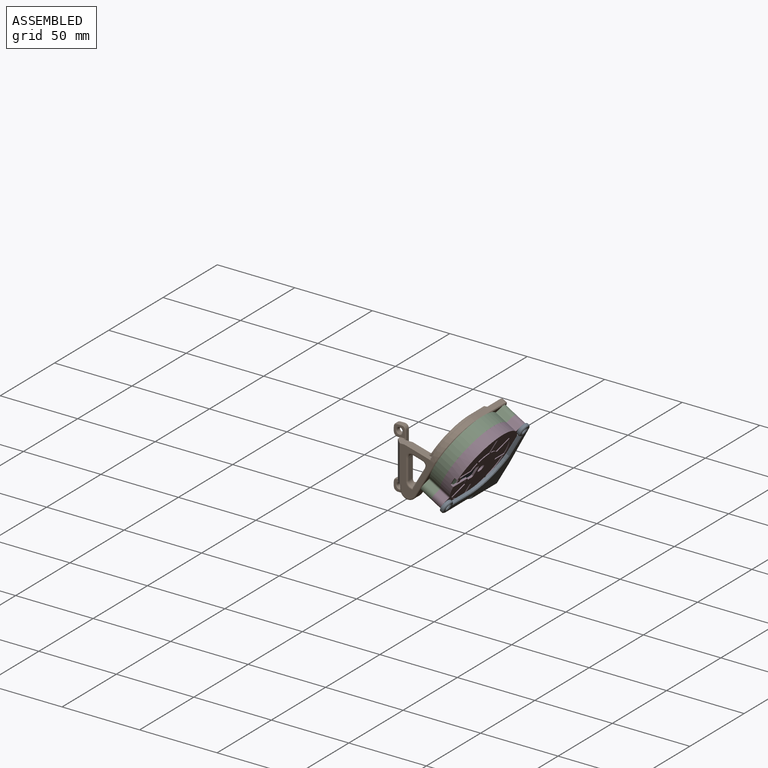
[diagram: assembled view]
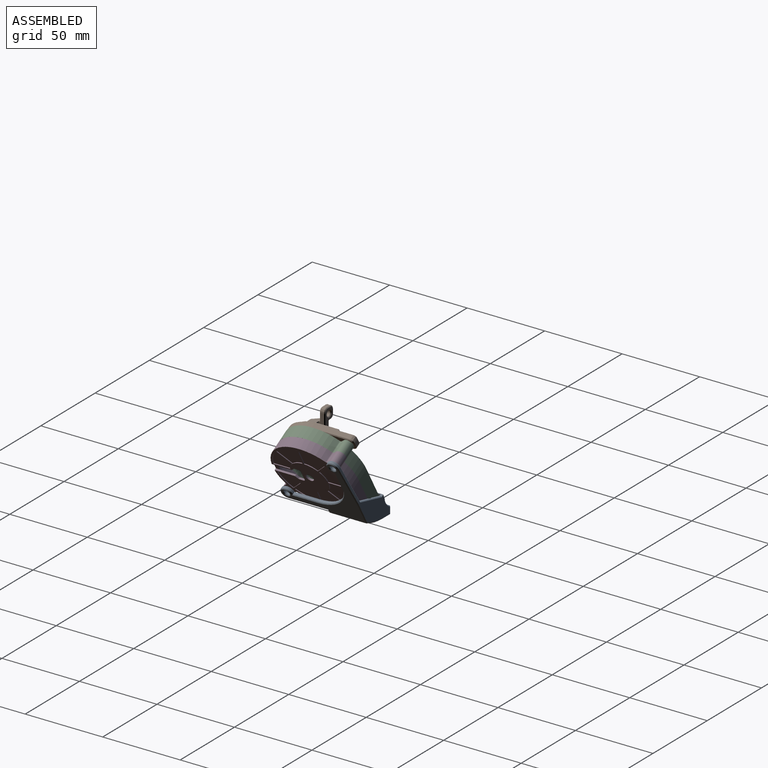
[diagram: assembled view, second angle]
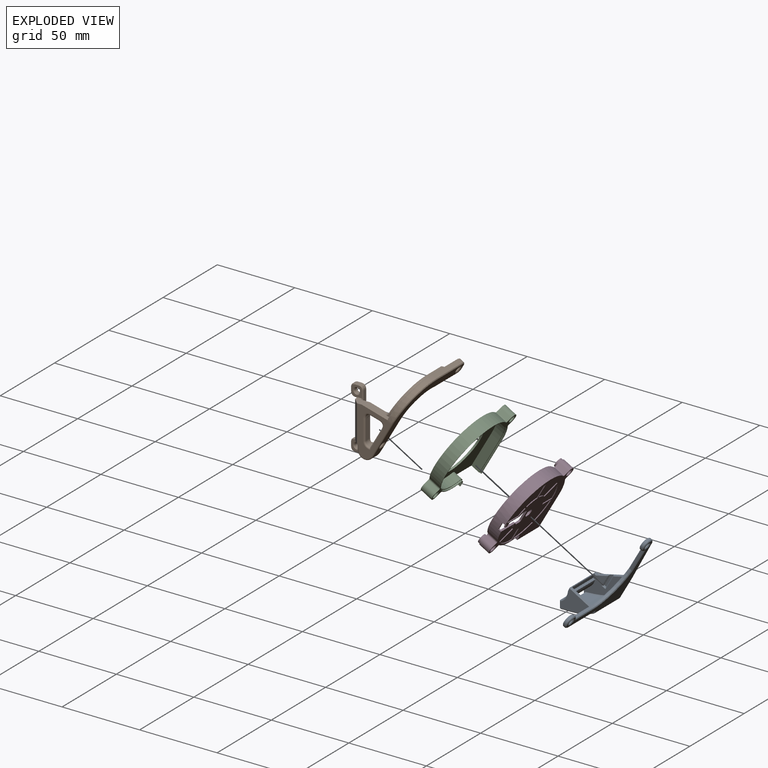
[diagram: exploded view]
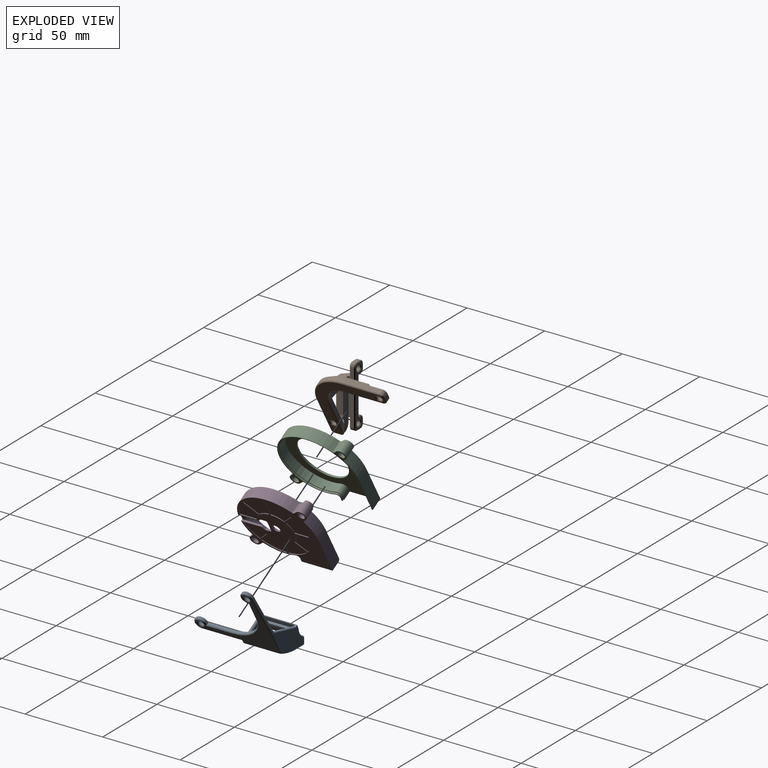
[diagram: exploded view, second angle]
ASSEMBLY  parts=4 mates=3
PART A: 91 faces, bbox 53.7x62x20.1 mm
  f0: plane 1.86x1.5mm, normal (0,1,0), area 1.9mm2, adj f1,f26,f46,f53,f69
  f1: plane 15x13.85mm, normal (0,0.73,-0.68), area 19.3mm2, adj f0,f13,f28,f29,f30,f32,f34,f42
  f2: plane 23.5x3.9mm, normal (0,-0.5,-0.87), area 22.7mm2, adj f14,f25,f27,f57,f64,f65,f78,f80
  f3: plane 16.12x1mm, normal (0,1,0), area 16.1mm2, adj f13,f48,f53,f90
  f4: plane 25.15x1.5mm, normal (0,-1,0), area 37.7mm2, adj f9,f18,f54,f73
  f5: cylinder r=4mm len=8.01mm, axis (0,0,-1), area 28.1mm2, adj f6,f38,f41,f72
  f6: plane 16x1.5mm, normal (-1,0,0), area 24mm2, adj f5,f7,f39,f74
  f7: cylinder r=23.69mm len=23mm, axis (0,0,-1), area 47.2mm2, adj f6,f8,f40,f76
  f8: plane 16x1.5mm, normal (0,1,0), area 24mm2, adj f7,f9,f43,f77
  f9: cylinder r=4.05mm len=8.09mm, axis (0,0,-1), area 27.7mm2, adj f4,f8,f49,f75
  f10: cylinder r=2mm len=4mm, axis (0,0,-1), area 18.8mm2, adj f81,f82
  f11: cylinder r=2mm len=4mm, axis (0,0,-1), area 18.8mm2, adj f83,f84
  f12: plane 52.7x47.99mm, normal (0,0,1), area 548mm2, adj f39,f40,f41,f43,f44,f49,f50,f54
  f13: plane 52.7x49.16mm, normal (0,0,-1), area 546.4mm2, adj f1,f3,f18,f21,f25,f27,f48,f70
  f14: cylinder r=7.59mm len=23.5mm, axis (1,0,0), area 208.4mm2, adj f2,f15,f52,f62
  f15: plane 23.5x2.46mm, normal (0,-0.08,-1), area 58mm2, adj f14,f45,f53,f58
  f16: cylinder r=38.89mm len=23.5mm, axis (1,0,0), area 358.4mm2, adj f17,f51,f60,f66
  f17: plane 23.5x5.63mm, normal (0,-0.87,0.5), area 152.7mm2, adj f16,f56,f64,f68
  f18: plane 18.95x15.44mm, normal (-1,0,0), area 163.7mm2, adj f4,f13,f58,f59,f62,f65,f66,f68
  f19: plane 20.5x1.5mm, normal (0,1,0), area 30.7mm2, adj f20,f24,f25,f27
  f20: plane 20.66x2.58mm, normal (0,0.16,0.99), area 53.7mm2, adj f19,f25,f27,f46,f47,f48
  f21: plane 20.5x0.77mm, normal (0,1,0), area 15.8mm2, adj f13,f25,f27,f79
  f22: cylinder r=43.69mm len=19.5mm, axis (1,0,0), area 225.1mm2, adj f23,f79,f86,f88
  f23: plane 19.5x5.43mm, normal (0,0.83,-0.56), area 127.8mm2, adj f22,f80,f87,f89
  f24: cylinder r=8.56mm len=20.5mm, axis (1,0,0), area 198mm2, adj f19,f25,f27,f78
  f25: plane 17.36x14.66mm, normal (1,0,0), area 117.1mm2, adj f2,f13,f19,f20,f21,f24,f48,f78
  f26: plane 29.1x18.95mm, normal (1,0,0), area 293.4mm2, adj f0,f38,f45,f50,f51,f52,f53,f56
  f27: plane 28.33x17.36mm, normal (-1,0,0), area 193.2mm2, adj f2,f13,f19,f20,f21,f24,f35,f36
  f28: plane 9.39x1.2mm, normal (-1,0,0), area 10.6mm2, adj f1,f32,f33,f34
  f29: plane 8.31x0.2mm, normal (0,0,1), area 1.7mm2, adj f1,f31,f34,f35,f42
  f30: plane 10.16x0.2mm, normal (0,0,-1), area 2mm2, adj f1,f31,f32,f36,f85
  f31: plane 2x0.2mm, normal (0,1,0), area 0.4mm2, adj f29,f30,f33,f37
  f32: plane 10.16x0.4mm, normal (-0.71,0,-0.71), area 5.5mm2, adj f1,f28,f30,f33
  f33: plane 2x0.4mm, normal (-0.71,0.71,0), area 0.9mm2, adj f28,f31,f32,f34
  f34: plane 8.68x0.4mm, normal (-0.71,0,0.71), area 4.7mm2, adj f1,f28,f29,f33
  f35: plane 8.58x0.4mm, normal (-0.71,0,0.71), area 4.5mm2, adj f27,f29,f37,f42
  f36: plane 10.42x0.4mm, normal (-0.71,0,-0.71), area 5.7mm2, adj f27,f30,f37,f85
  f37: plane 2.8x0.4mm, normal (-0.71,0.71,0), area 1.4mm2, adj f27,f31,f35,f36
  f38: plane 28.5x2.5mm, normal (1,0.09,0), area 42.9mm2, adj f5,f26,f44,f71
  f39: plane 16.58x0.5mm, normal (-0.71,0,0.71), area 11.5mm2, adj f6,f12,f40,f41
  f40: cone r=23.69mm half-angle=45deg, axis (0,0,1), area 22.5mm2, adj f7,f12,f39,f43
  f41: cone r=3.5mm half-angle=45deg, axis (0,0,-1), area 12.6mm2, adj f5,f12,f39,f44
  f42: plane 6.31x6.3mm, normal (-0.71,0.52,-0.48), area 5.8mm2, adj f1,f27,f29,f35,f46
  f43: plane 16.46x0.5mm, normal (0,0.71,0.71), area 11.5mm2, adj f8,f12,f40,f49
  f44: plane 28.52x3mm, normal (0.7,0.06,0.71), area 20.2mm2, adj f12,f38,f41,f50
  f45: plane 2.96x0.7mm, normal (0.71,-0.06,-0.7), area 1.9mm2, adj f15,f26,f52,f53
  f46: plane 1.45x0.5mm, normal (-0.71,0.71,0), area 0.8mm2, adj f0,f20,f27,f42,f47,f53
  f47: plane 21.22x0.33mm, normal (0,0.76,0.65), area 8.9mm2, adj f20,f46,f48,f53
  f48: plane 16.26x0.5mm, normal (0.71,0.71,0), area 11.4mm2, adj f3,f13,f20,f25,f47,f53
  f49: cone r=3.55mm half-angle=45deg, axis (0,0,-1), area 12.4mm2, adj f9,f12,f43,f54
  f50: plane 15.99x0.5mm, normal (0.71,0,0.71), area 11.3mm2, adj f12,f26,f44,f55
  f51: cone r=38.39mm half-angle=45deg, axis (-1,0,0), area 10.7mm2, adj f16,f26,f55,f56
  f52: cone r=7.59mm half-angle=45deg, axis (1,0,0), area 6.3mm2, adj f14,f26,f45,f57
  f53: plane 24.27x0.54mm, normal (0,0.68,-0.74), area 13.5mm2, adj f0,f3,f15,f26,f45,f46,f47,f48
  f54: plane 25.65x0.5mm, normal (0,-0.71,0.71), area 18mm2, adj f4,f12,f49,f59
  f55: plane 0.5x0.5mm, normal (0.69,-0.23,0.69), area 0.1mm2, adj f50,f51,f60
  f56: plane 5.88x3.68mm, normal (0.71,-0.61,0.35), area 4.6mm2, adj f17,f26,f51,f61
  f57: plane 3.91x2.69mm, normal (0.71,-0.35,-0.61), area 3.1mm2, adj f2,f26,f52,f61
  f58: plane 2.73x0.7mm, normal (-0.71,-0.06,-0.7), area 1.8mm2, adj f15,f18,f53,f62,f90
  f59: plane 2.33x0.5mm, normal (-0.71,0,0.71), area 1.5mm2, adj f12,f18,f54,f63
  f60: plane 23.5x0.3mm, normal (0,-0.32,0.95), area 7.6mm2, adj f12,f16,f55,f63
  f61: plane 0.68x0.5mm, normal (0.58,-0.79,-0.21), area 0.2mm2, adj f56,f57,f64
  f62: cone r=8.09mm half-angle=45deg, axis (-1,0,0), area 6.3mm2, adj f14,f18,f58,f65
  f63: plane 0.5x0.5mm, normal (-0.69,-0.23,0.69), area 0.1mm2, adj f59,f60,f66
  f64: plane 23.5x0.68mm, normal (0,-0.97,-0.26), area 16.6mm2, adj f2,f17,f61,f67
  f65: plane 3.91x2.69mm, normal (-0.71,-0.35,-0.61), area 3.1mm2, adj f2,f18,f62,f67
  f66: cone r=38.89mm half-angle=45deg, axis (1,0,0), area 10.7mm2, adj f16,f18,f63,f68
  f67: plane 0.68x0.5mm, normal (-0.58,-0.79,-0.21), area 0.2mm2, adj f64,f65,f68
  f68: plane 5.88x3.68mm, normal (-0.71,-0.61,0.35), area 4.6mm2, adj f17,f18,f66,f67
  f69: plane 15.5x13.85mm, normal (0.71,0.52,-0.48), area 14.3mm2, adj f0,f1,f26,f70
  f70: plane 0.53x0.5mm, normal (0.71,0,-0.71), area 0.3mm2, adj f13,f26,f69,f71
  f71: plane 28.52x3mm, normal (0.7,0.06,-0.71), area 20.2mm2, adj f13,f38,f70,f72
  f72: cone r=4mm half-angle=45deg, axis (0,0,1), area 12.6mm2, adj f5,f13,f71,f74
  f73: plane 25.15x0.5mm, normal (0,-0.71,-0.71), area 17.8mm2, adj f4,f13,f18,f75
  f74: plane 16.58x0.5mm, normal (-0.71,0,-0.71), area 11.5mm2, adj f6,f13,f72,f76
  f75: cone r=4.05mm half-angle=45deg, axis (0,0,1), area 12.4mm2, adj f9,f13,f73,f77
  f76: cone r=24.19mm half-angle=45deg, axis (0,0,-1), area 22.5mm2, adj f7,f13,f74,f77
  f77: plane 16.46x0.5mm, normal (0,0.71,-0.71), area 11.5mm2, adj f8,f13,f75,f76
  f78: plane 20.5x0.76mm, normal (0,-0.99,-0.16), area 15.8mm2, adj f2,f24,f25,f27
  f79: plane 20.51x1.51mm, normal (0,0.91,-0.42), area 9.2mm2, adj f21,f22,f25,f27,f86,f88
  f80: plane 20.5x1.38mm, normal (0,0.22,-0.97), area 14.3mm2, adj f2,f23,f25,f27,f87,f89
  f81: cone r=2mm half-angle=45deg, axis (0,0,1), area 10mm2, adj f10,f12
  f82: cone r=2.5mm half-angle=45deg, axis (0,0,-1), area 10mm2, adj f10,f13
  f83: cone r=2mm half-angle=45deg, axis (0,0,1), area 10mm2, adj f11,f12
  f84: cone r=2.5mm half-angle=45deg, axis (0,0,-1), area 10mm2, adj f11,f13
  f85: plane 6.71x6.5mm, normal (-0.71,0.52,-0.48), area 6.3mm2, adj f1,f13,f27,f30,f36
  f86: cone r=43.19mm half-angle=45deg, axis (1,0,0), area 7.7mm2, adj f22,f25,f79,f87
  f87: plane 5.43x4.09mm, normal (0.71,0.59,-0.4), area 4.4mm2, adj f23,f25,f80,f86
  f88: cone r=43.69mm half-angle=45deg, axis (-1,0,0), area 7.7mm2, adj f22,f27,f79,f89
  f89: plane 5.43x4.09mm, normal (-0.71,0.59,-0.4), area 4.4mm2, adj f23,f27,f80,f88
  f90: plane 16.37x0.5mm, normal (-0.71,0.71,0), area 11.5mm2, adj f3,f13,f18,f53,f58
PART B: 145 faces, bbox 43.1x52.1x49 mm
  f0: plane 14.97x4.91mm, normal (0.27,0,0.96), area 54.9mm2, adj f18,f19,f20,f25,f30,f42,f68,f69
  f1: plane 8.74x0.2mm, normal (-1,0,0), area 1.2mm2, adj f20,f53,f114,f139
  f2: plane 6.65x2.63mm, normal (0.27,0,0.96), area 6.6mm2, adj f53,f113,f114,f116,f119,f130
  f3: plane 34x3.5mm, normal (1,0,0), area 109mm2, adj f19,f20,f22,f43,f47,f56,f89,f96
  f4: cylinder r=1.75mm len=3.5mm, axis (0,-1,0), area 27.5mm2, adj f107,f109
  f5: cylinder r=1.75mm len=3.5mm, axis (0,-1,0), area 27.5mm2, adj f106,f110
  f6: plane 30.92x21.61mm, normal (0,-1,0), area 240mm2, adj f17,f19,f22,f38,f52,f68,f126,f127
  f7: plane 2.5x2mm, normal (0,0,1), area 5mm2, adj f46,f47,f60,f87
  f8: plane 2.5x2mm, normal (-1,0,0), area 5mm2, adj f46,f48,f64,f85
  f9: plane 2.5x0.5mm, normal (0,0,-1), area 1.3mm2, adj f48,f67,f83,f120
  f10: plane 25x4.5mm, normal (-1,0,0), area 106.2mm2, adj f19,f22,f52,f65,f83,f90,f120,f122
  f11: plane 2.5x0.5mm, normal (0,0,1), area 1.3mm2, adj f44,f63,f90,f122
  f12: plane 2.5x2mm, normal (-1,0,0), area 5mm2, adj f44,f45,f59,f92
  f13: plane 2.5x2mm, normal (0,0,-1), area 5mm2, adj f43,f45,f55,f94
  f14: plane 39.24x7.24mm, normal (0,1,0), area 135.4mm2, adj f54,f55,f56,f57,f58,f59,f60,f61
  f15: plane 12.78x4mm, normal (1,0,0), area 51.1mm2, adj f20,f50,f113,f126
  f16: plane 4.92x4mm, normal (-0.27,0,-0.96), area 20.4mm2, adj f20,f40,f50,f129
  f17: plane 0.45x0.26mm, normal (0.87,0,-0.5), area 0mm2, adj f6,f38,f68
  f18: plane 13.69x4.09mm, normal (0.27,0,0.96), area 3mm2, adj f0,f20,f26,f30,f101
  f19: plane 9x6mm, normal (0,0,1), area 37mm2, adj f0,f3,f6,f10,f20,f52,f68,f89
  f20: plane 32.09x19.69mm, normal (0,1,0), area 215.5mm2, adj f0,f1,f3,f15,f16,f18,f19,f23
  f21: plane 7.24x7.24mm, normal (0,-1,0), area 30.1mm2, adj f83,f84,f85,f86,f87,f88,f89,f106
  f22: plane 6x5mm, normal (0,0,-1), area 12.7mm2, adj f3,f6,f10,f23,f52,f96,f125,f134
  f23: plane 4x2.51mm, normal (-1,0,0), area 10.1mm2, adj f20,f22,f117,f134
  f24: plane 7.24x7.24mm, normal (0,-1,0), area 30.1mm2, adj f90,f91,f92,f93,f94,f95,f96,f107
  f25: cylinder r=21.66mm len=21.66mm, axis (0.87,0,-0.5), area 51.3mm2, adj f0,f28,f30,f99,f100
  f26: cylinder r=17.84mm len=19.17mm, axis (0.87,0,-0.5), area 46.2mm2, adj f18,f29,f30,f101,f102
  f27: plane 34.67x16.18mm, normal (-0.87,0,0.5), area 56.5mm2, adj f42,f51,f98,f99,f102,f103
  f28: plane 14.95x1.3mm, normal (0.5,0,0.87), area 21.3mm2, adj f25,f30,f97,f98
  f29: plane 14.95x1.3mm, normal (-0.5,0,-0.87), area 21.3mm2, adj f26,f30,f103,f104
  f30: plane 50.5x39.64mm, normal (-0.87,0,0.5), area 368.3mm2, adj f0,f18,f20,f25,f26,f28,f29,f40
  f31: plane 24.12x2.6mm, normal (0.5,0,0.87), area 72.4mm2, adj f38,f49,f70,f82
  f32: plane 3.6x3.23mm, normal (0,1,0), area 6mm2, adj f41,f49,f72,f79
  f33: cylinder r=2mm len=4.96mm, axis (0.87,0,-0.5), area 37.7mm2, adj f105,f108
  f34: plane 20.56x11.15mm, normal (0,1,0), area 50.3mm2, adj f35,f76,f116,f143
  f35: cylinder r=16mm len=16mm, axis (0.87,0,-0.5), area 62.8mm2, adj f34,f36,f75,f144
  f36: plane 24.16x2.61mm, normal (-0.5,0,-0.87), area 71.9mm2, adj f35,f41,f74,f77,f144
  f37: cylinder r=2mm len=4.96mm, axis (0.87,0,-0.5), area 37.7mm2, adj f111,f112
  f38: cylinder r=24.5mm len=24.18mm, axis (0.87,0,-0.5), area 112.9mm2, adj f6,f17,f31,f68,f69,f81,f137
  f39: plane 50.04x42.71mm, normal (0.87,0,-0.5), area 504.7mm2, adj f77,f78,f79,f80,f81,f82,f105,f112
  f40: bspline ~5.5x4.39mm, area 23.4mm2, adj f16,f20,f30,f131
  f41: bspline ~5.31x4.8mm, area 14.6mm2, adj f32,f36,f73,f78
  f42: bspline ~3.4x2.83mm, area 6mm2, adj f0,f27,f100,f101
  f43: bspline ~3.85x3mm, area 12.2mm2, adj f3,f13,f54,f95
  f44: bspline ~3.85x3mm, area 12.2mm2, adj f11,f12,f61,f91
  f45: bspline ~3.85x3mm, area 12.2mm2, adj f12,f13,f57,f93
  f46: bspline ~3.85x3mm, area 12.2mm2, adj f7,f8,f62,f86
  f47: bspline ~3.85x3mm, area 12.2mm2, adj f3,f7,f58,f88
  f48: bspline ~3.85x3mm, area 12.2mm2, adj f8,f9,f66,f84
  f49: bspline ~5.31x4.8mm, area 14.6mm2, adj f31,f32,f71,f80
  f50: bspline ~5.5x3.95mm, area 23.7mm2, adj f15,f16,f20,f127
  f51: plane 2.53x2.39mm, normal (-0.61,0.71,0.35), area 4.5mm2, adj f27,f30,f97,f104
  f52: plane 24x4mm, normal (-0.71,-0.71,0), area 135.8mm2, adj f6,f10,f19,f22
  f53: plane 7.87x1.25mm, normal (-0.71,0.71,0), area 13mm2, adj f1,f2,f114,f116,f139
  f54: bspline ~3x3mm, area 3.2mm2, adj f14,f43,f55,f56
  f55: plane 2x0.5mm, normal (0,0.71,-0.71), area 1.4mm2, adj f13,f14,f54,f57
  f56: plane 34x0.5mm, normal (0.71,0.71,0), area 24mm2, adj f3,f14,f54,f58
  f57: bspline ~3x3mm, area 3.2mm2, adj f14,f45,f55,f59
  f58: bspline ~3x3mm, area 3.2mm2, adj f14,f47,f56,f60
  f59: plane 2x0.5mm, normal (-0.71,0.71,0), area 1.4mm2, adj f12,f14,f57,f61
  f60: plane 2x0.5mm, normal (0,0.71,0.71), area 1.4mm2, adj f7,f14,f58,f62
  f61: bspline ~3x3mm, area 3.2mm2, adj f14,f44,f59,f63
  f62: bspline ~3x3mm, area 3.2mm2, adj f14,f46,f60,f64
  f63: plane 1.15x0.57mm, normal (0,0.71,0.71), area 0.6mm2, adj f11,f14,f61,f122,f123
  f64: plane 2x0.5mm, normal (-0.71,0.71,0), area 1.4mm2, adj f8,f14,f62,f66
  f65: plane 24.29x0.57mm, normal (-0.71,0.71,0), area 16.8mm2, adj f10,f14,f120,f121,f122,f123
  f66: bspline ~3x3mm, area 3.2mm2, adj f14,f48,f64,f67
  f67: plane 1.15x0.57mm, normal (0,0.71,-0.71), area 0.6mm2, adj f9,f14,f66,f120,f121
  f68: plane 16.63x4.62mm, normal (0.19,-0.71,0.68), area 11.4mm2, adj f0,f6,f17,f19,f38,f69
  f69: cone r=24mm half-angle=45deg, axis (0.87,0,-0.5), area 25.8mm2, adj f0,f30,f38,f68,f70
  f70: plane 24.12x0.68mm, normal (-0.26,0,0.97), area 17.1mm2, adj f30,f31,f69,f71
  f71: bspline ~3x2.6mm, area 3.2mm2, adj f30,f49,f70,f72
  f72: plane 1.98x1.43mm, normal (-0.61,0.71,0.35), area 1.4mm2, adj f30,f32,f71,f73
  f73: bspline ~3x2.85mm, area 3.2mm2, adj f30,f41,f72,f74
  f74: plane 24.15x0.68mm, normal (-0.97,0,-0.26), area 17.1mm2, adj f30,f36,f73,f75
  f75: cone r=16mm half-angle=45deg, axis (-0.87,0,0.5), area 18mm2, adj f30,f35,f74,f76
  f76: plane 19.04x11.43mm, normal (-0.61,0.71,0.35), area 14.8mm2, adj f30,f34,f75,f116
  f77: plane 22.48x0.68mm, normal (0.26,0,-0.97), area 15.6mm2, adj f36,f39,f78,f144
  f78: bspline ~3x2.6mm, area 3.2mm2, adj f39,f41,f77,f79
  f79: plane 1.98x1.43mm, normal (0.61,0.71,-0.35), area 1.4mm2, adj f32,f39,f78,f80
  f80: bspline ~3x2.85mm, area 3.2mm2, adj f39,f49,f79,f82
  f81: cone r=24mm half-angle=45deg, axis (-0.87,0,0.5), area 24.9mm2, adj f38,f39,f82,f137
  f82: plane 24.12x0.68mm, normal (0.97,0,0.26), area 17.1mm2, adj f31,f39,f80,f81
  f83: plane 1x1mm, normal (0,-0.71,-0.71), area 0.9mm2, adj f9,f10,f21,f84,f120
  f84: bspline ~3x3mm, area 3.2mm2, adj f21,f48,f83,f85
  f85: plane 2x0.5mm, normal (-0.71,-0.71,0), area 1.4mm2, adj f8,f21,f84,f86
  f86: bspline ~3x3mm, area 3.2mm2, adj f21,f46,f85,f87
  f87: plane 2x0.5mm, normal (0,-0.71,0.71), area 1.4mm2, adj f7,f21,f86,f88
  f88: bspline ~3x3mm, area 3.2mm2, adj f21,f47,f87,f89
  f89: plane 5x1mm, normal (0.71,-0.71,0), area 3.7mm2, adj f3,f19,f21,f88,f124
  f90: plane 1x1mm, normal (0,-0.71,0.71), area 0.9mm2, adj f10,f11,f24,f91,f122
  f91: bspline ~3x3mm, area 3.2mm2, adj f24,f44,f90,f92
  f92: plane 2x0.5mm, normal (-0.71,-0.71,0), area 1.4mm2, adj f12,f24,f91,f93
  f93: bspline ~3x3mm, area 3.2mm2, adj f24,f45,f92,f94
  f94: plane 2x0.5mm, normal (0,-0.71,-0.71), area 1.4mm2, adj f13,f24,f93,f95
  f95: bspline ~3x3mm, area 3.2mm2, adj f24,f43,f94,f96
  f96: plane 5x1mm, normal (0.71,-0.71,0), area 3.7mm2, adj f3,f22,f24,f95,f125
  f97: plane 2.21x1.98mm, normal (-0.08,0.5,0.86), area 1.7mm2, adj f28,f30,f51,f98
  f98: plane 13.65x0.68mm, normal (-0.26,0,0.97), area 9.6mm2, adj f27,f28,f97,f99
  f99: cone r=21.66mm half-angle=45deg, axis (0.87,0,-0.5), area 22mm2, adj f25,f27,f98,f100
  f100: bspline ~4.24x2.06mm, area 2.4mm2, adj f0,f25,f42,f99
  f101: bspline ~4.04x2.02mm, area 2.3mm2, adj f18,f26,f42,f102
  f102: cone r=18.34mm half-angle=45deg, axis (-0.87,0,0.5), area 20.2mm2, adj f26,f27,f101,f103
  f103: plane 13.66x0.68mm, normal (-0.97,0,-0.26), area 9.6mm2, adj f27,f29,f102,f104
  f104: plane 2.21x1.73mm, normal (-0.79,0.5,-0.36), area 1.8mm2, adj f29,f30,f51,f103
  f105: cone r=2mm half-angle=45deg, axis (0.87,0,-0.5), area 10mm2, adj f33,f39
  f106: cone r=1.75mm half-angle=45deg, axis (0,-1,0), area 8.9mm2, adj f5,f21
  f107: cone r=1.75mm half-angle=45deg, axis (0,-1,0), area 8.9mm2, adj f4,f24
  f108: cone r=2mm half-angle=45deg, axis (-0.87,0,0.5), area 10mm2, adj f30,f33
  f109: cone r=2.25mm half-angle=45deg, axis (0,1,0), area 8.9mm2, adj f4,f14
  f110: cone r=2.25mm half-angle=45deg, axis (0,1,0), area 8.9mm2, adj f5,f14
  f111: cone r=2mm half-angle=45deg, axis (-0.87,0,0.5), area 10mm2, adj f30,f37
  f112: cone r=2mm half-angle=45deg, axis (0.87,0,-0.5), area 10mm2, adj f37,f39
  f113: cylinder r=3mm len=4.5mm, axis (0,1,0), area 16mm2, adj f2,f15,f20,f114,f128
  f114: cylinder r=0.5mm len=2.46mm, axis (0.96,0,-0.27), area 1.1mm2, adj f1,f2,f20,f53,f113
  f115: bspline ~8.42x5.2mm, area 17.1mm2, adj f39,f118,f138,f141
  f116: bspline ~12.44x4.24mm, area 26mm2, adj f2,f34,f53,f76,f119,f140,f141,f142
  f117: bspline ~5.5x4.24mm, area 10.1mm2, adj f20,f23,f118,f135
  f118: cylinder r=5mm len=7.02mm, axis (0,1,0), area 33.7mm2, adj f20,f115,f117,f136,f139,f140
  f119: cylinder r=0.1mm len=6.65mm, axis (0,1,0), area 0.9mm2, adj f2,f30,f116,f132
  f120: plane 2.5x0.5mm, normal (-0.71,0,-0.71), area 1.5mm2, adj f9,f10,f65,f67,f83,f121
  f121: plane 0.93x0.93mm, normal (-0.41,0.82,-0.41), area 0.5mm2, adj f14,f65,f67,f120
  f122: plane 2.5x0.5mm, normal (-0.71,0,0.71), area 1.5mm2, adj f10,f11,f63,f65,f90,f123
  f123: plane 0.93x0.93mm, normal (-0.41,0.82,0.41), area 0.5mm2, adj f14,f63,f65,f122
  f124: plane 3.5x0.5mm, normal (0,-0.71,0.71), area 2.3mm2, adj f10,f19,f21,f89
  f125: plane 3.5x0.5mm, normal (0,-0.71,-0.71), area 2.3mm2, adj f10,f22,f24,f96
  f126: cylinder r=1mm len=12.78mm, axis (0,0,1), area 20.1mm2, adj f6,f15,f127,f128
  f127: bspline ~6.44x5.54mm, area 10.4mm2, adj f6,f50,f126,f129
  f128: torus R=4mm, axis (0,-1,0), area 6.9mm2, adj f6,f113,f126,f130
  f129: cylinder r=1mm len=5.19mm, axis (0.96,0,-0.27), area 8mm2, adj f6,f16,f127,f131
  f130: cylinder r=1mm len=1.17mm, axis (-0.96,0,0.27), area 1.2mm2, adj f2,f6,f128,f132
  f131: bspline ~7.46x4.82mm, area 10.2mm2, adj f6,f40,f129,f133
  f132: torus R=1.1mm, axis (0,-1,0), area 1mm2, adj f6,f119,f130,f133
  f133: cylinder r=1mm len=13.46mm, axis (-0.5,0,-0.87), area 23.5mm2, adj f6,f30,f131,f132
  f134: cylinder r=1mm len=2.51mm, axis (0,0,-1), area 4mm2, adj f6,f22,f23,f135
  f135: bspline ~4.79x1.79mm, area 3.7mm2, adj f6,f117,f134,f136
  f136: torus R=4mm, axis (0,-1,0), area 12.1mm2, adj f6,f118,f135,f138
  f137: cylinder r=1mm len=26.42mm, axis (0.5,0,0.87), area 43.2mm2, adj f6,f38,f39,f81,f138
  f138: bspline ~3.12x3.12mm, area 4.7mm2, adj f6,f115,f136,f137
  f139: bspline ~3.05x2.93mm, area 3.2mm2, adj f1,f20,f53,f118,f140
  f140: bspline ~1.61x1.51mm, area 0.3mm2, adj f116,f118,f139,f141
  f141: bspline ~3.57x3.43mm, area 6.8mm2, adj f115,f116,f140,f142
  f142: bspline ~4.99x3.74mm, area 5.7mm2, adj f39,f116,f141,f143
  f143: cylinder r=1mm len=19.81mm, axis (-0.5,0,-0.87), area 35mm2, adj f34,f39,f142,f144
  f144: torus R=17mm, axis (0.87,0,-0.5), area 43.5mm2, adj f35,f36,f39,f77,f143
PART C: 35 faces, bbox 51.3x51.1x8 mm
  f0: cylinder r=25.15mm len=50.3mm, axis (0,0,-1), area 79mm2, adj f28,f32,f33,f34
  f1: cylinder r=2.5mm len=3.25mm, axis (0,0,-1), area 4.7mm2, adj f28,f31,f32,f34
  f2: cylinder r=2.25mm len=8mm, axis (0,0,1), area 113.1mm2, adj f28,f29
  f3: cylinder r=2.25mm len=8mm, axis (0,0,1), area 113.1mm2, adj f28,f29
  f4: cylinder r=22.07mm len=19.05mm, axis (0,0,1), area 159.4mm2, adj f20,f21,f28,f29
  f5: cylinder r=3.3mm len=8mm, axis (0,0,1), area 82.9mm2, adj f18,f19,f28,f29
  f6: cylinder r=1mm len=8mm, axis (0,0,1), area 11mm2, adj f14,f15,f28,f29
  f7: cylinder r=16mm len=32mm, axis (0,0,1), area 120.6mm2, adj f29,f30
  f8: cylinder r=24.65mm len=49.3mm, axis (0,0,-1), area 449.3mm2, adj f11,f12,f30,f34
  f9: cylinder r=3mm len=5.8mm, axis (0,0,-1), area 32.6mm2, adj f10,f11,f30,f34
  f10: plane 5.8x2.44mm, normal (-1,0,0), area 14.2mm2, adj f9,f23,f30,f34
  f11: cylinder r=21.07mm len=27.4mm, axis (0,0,-1), area 229.2mm2, adj f8,f9,f30,f34
  f12: plane 25.4x5.8mm, normal (1,0,0), area 147.3mm2, adj f8,f23,f30,f34
  f13: cylinder r=3.3mm len=8mm, axis (0,0,1), area 82.9mm2, adj f14,f27,f28,f29
  f14: plane 8x2.22mm, normal (0.66,0.75,0), area 23.7mm2, adj f6,f13,f28,f29
  f15: cylinder r=25.65mm len=41.13mm, axis (0,0,1), area 455.4mm2, adj f6,f16,f28,f29
  f16: cylinder r=22.07mm len=12.41mm, axis (0,0,1), area 105.5mm2, adj f15,f17,f28,f29
  f17: cylinder r=1mm len=8mm, axis (0,0,1), area 11.6mm2, adj f16,f18,f28,f29
  f18: plane 8x2.04mm, normal (0.66,0.75,0), area 21.8mm2, adj f5,f17,f28,f29
  f19: plane 8x2.44mm, normal (-0.66,-0.75,0), area 26mm2, adj f5,f20,f28,f29
  f20: cylinder r=1mm len=8mm, axis (0,0,1), area 10.6mm2, adj f4,f19,f28,f29
  f21: cylinder r=2mm len=8mm, axis (0,0,1), area 30mm2, adj f4,f22,f28,f29
  f22: plane 8x2.44mm, normal (1,0,0), area 19.6mm2, adj f21,f23,f28,f29
  f23: plane 20x8mm, normal (0,-1,0), area 36.6mm2, adj f10,f12,f22,f24,f28,f29,f30,f31
  f24: plane 25.4x8mm, normal (-1,0,0), area 203.2mm2, adj f23,f25,f28,f29
  f25: cylinder r=25.65mm len=14.47mm, axis (0,0,1), area 122.9mm2, adj f24,f26,f28,f29
  f26: cylinder r=1mm len=8mm, axis (0,0,1), area 11.6mm2, adj f25,f27,f28,f29
  f27: plane 8x1.98mm, normal (-0.66,-0.75,0), area 21.1mm2, adj f13,f26,f28,f29
  f28: plane 51.3x51.07mm, normal (0,0,-1), area 126.8mm2, adj f0,f1,f2,f3,f4,f5,f6,f13
  f29: plane 51.3x51.07mm, normal (0,0,1), area 1370.5mm2, adj f2,f3,f4,f5,f6,f7,f13,f14
  f30: plane 50.07x49.3mm, normal (0,0,-1), area 1168mm2, adj f7,f8,f9,f10,f11,f12,f23
  f31: plane 2.44x1mm, normal (-1,0,0), area 2.4mm2, adj f1,f23,f28,f34
  f32: cylinder r=21.57mm len=28.05mm, axis (0,0,-1), area 40.5mm2, adj f0,f1,f28,f34
  f33: plane 25.4x1mm, normal (1,0,0), area 25.4mm2, adj f0,f23,f28,f34
  f34: plane 50.57x50.3mm, normal (0,0,-1), area 75.6mm2, adj f0,f1,f8,f9,f10,f11,f12,f23
PART D: 104 faces, bbox 52.9x51.4x8.5 mm
  f0: torus R=1.41mm, axis (0,0,-1), area 1.6mm2, adj f31,f35,f102,f103
  f1: cylinder r=21.88mm len=15.3mm, axis (0,0,-1), area 8.4mm2, adj f14,f53,f54,f55
  f2: cylinder r=2.82mm len=5.65mm, axis (0,0,-1), area 26.6mm2, adj f15,f41
  f3: cylinder r=2.82mm len=5.65mm, axis (0,0,-1), area 26.6mm2, adj f15,f40
  f4: cylinder r=21.57mm len=28.05mm, axis (0,0,1), area 40.5mm2, adj f15,f16,f37,f38
  f5: cylinder r=21.07mm len=27.4mm, axis (0,0,1), area 266.7mm2, adj f16,f31,f33,f34,f86,f87
  f6: cylinder r=2.5mm len=5mm, axis (0,0,-1), area 18.8mm2, adj f14,f31
  f7: cylinder r=2.25mm len=8.5mm, axis (0,0,-1), area 120.2mm2, adj f14,f40
  f8: cylinder r=2.25mm len=8.5mm, axis (0,0,-1), area 120.2mm2, adj f14,f41
  f9: cylinder r=25.65mm len=41.13mm, axis (0,0,-1), area 393.3mm2, adj f13,f14,f15,f28,f29,f87
  f10: cylinder r=1mm len=7mm, axis (0,0,-1), area 9.3mm2, adj f14,f15,f23,f24
  f11: cylinder r=2mm len=7mm, axis (0,0,-1), area 26.3mm2, adj f14,f15,f22,f23
  f12: cylinder r=3.3mm len=7mm, axis (0,0,-1), area 72.6mm2, adj f14,f15,f17,f30
  f13: plane 12.66x2mm, normal (0,-1,0), area 13.2mm2, adj f9,f14,f31,f34,f87,f93,f95,f98
  f14: plane 51.17x51.07mm, normal (0,0,-1), area 1131.7mm2, adj f1,f6,f7,f8,f9,f10,f11,f12
  f15: plane 51.3x51.07mm, normal (0,0,1), area 108.5mm2, adj f2,f3,f4,f9,f10,f11,f12,f17
  f16: plane 50.57x50.3mm, normal (0,0,1), area 75.6mm2, adj f4,f5,f21,f32,f33,f34,f35,f36
  f17: plane 7x1.98mm, normal (-0.66,-0.75,0), area 18.5mm2, adj f12,f14,f15,f18
  f18: cylinder r=1mm len=7mm, axis (0,0,-1), area 10.1mm2, adj f14,f15,f17,f19
  f19: cylinder r=25.65mm len=14.47mm, axis (0,0,-1), area 107.6mm2, adj f14,f15,f18,f20
  f20: plane 25.4x7mm, normal (-1,0,0), area 177.8mm2, adj f14,f15,f19,f21
  f21: plane 20x8mm, normal (0,-1,0), area 31.2mm2, adj f14,f15,f16,f20,f22,f32,f35,f36
  f22: plane 7x2.44mm, normal (1,0,0), area 17.1mm2, adj f11,f14,f15,f21
  f23: cylinder r=22.07mm len=19.05mm, axis (0,0,-1), area 139.5mm2, adj f10,f11,f14,f15
  f24: plane 7x2.44mm, normal (-0.66,-0.75,0), area 22.8mm2, adj f10,f14,f15,f25
  f25: cylinder r=3.3mm len=7mm, axis (0,0,-1), area 72.6mm2, adj f14,f15,f24,f26
  f26: plane 7x2.04mm, normal (0.66,0.75,0), area 19.1mm2, adj f14,f15,f25,f27
  f27: cylinder r=1mm len=7mm, axis (0,0,-1), area 10.1mm2, adj f14,f15,f26,f28
  f28: cylinder r=22.07mm len=12.41mm, axis (0,0,-1), area 87.1mm2, adj f9,f14,f15,f27,f86,f87
  f29: cylinder r=1mm len=7mm, axis (0,0,-1), area 9.6mm2, adj f9,f14,f15,f30
  f30: plane 7x2.22mm, normal (0.66,0.75,0), area 20.7mm2, adj f12,f14,f15,f29
  f31: plane 49.16x46.35mm, normal (0,0,1), area 1650.7mm2, adj f0,f5,f6,f13,f33,f34,f35,f81
  f32: plane 7.1x2.44mm, normal (-1,0,0), area 17.4mm2, adj f16,f21,f33,f102
  f33: cylinder r=3mm len=7.1mm, axis (0,0,1), area 38.5mm2, adj f5,f16,f31,f32,f103
  f34: cylinder r=24.65mm len=49.3mm, axis (0,0,1), area 524.7mm2, adj f5,f13,f16,f31,f35,f87
  f35: plane 25.4x7.1mm, normal (1,0,0), area 179.6mm2, adj f0,f16,f21,f31,f34,f102
  f36: plane 25.4x1mm, normal (-1,0,0), area 25.4mm2, adj f15,f16,f21,f37
  f37: cylinder r=25.15mm len=50.3mm, axis (0,0,1), area 79mm2, adj f4,f15,f16,f36
  f38: cylinder r=2.5mm len=3.25mm, axis (0,0,1), area 4.7mm2, adj f4,f15,f16,f39
  f39: plane 2.44x1mm, normal (1,0,0), area 2.4mm2, adj f15,f16,f21,f38
  f40: plane 5.65x5.65mm, normal (0,0,1), area 9.2mm2, adj f3,f7
  f41: plane 5.65x5.65mm, normal (0,0,1), area 9.2mm2, adj f2,f8
  f42: plane 6.99x6.99mm, normal (0.71,0.71,0), area 4.9mm2, adj f14,f43,f45,f46
  f43: cylinder r=12mm len=7.62mm, axis (0,0,-1), area 4.2mm2, adj f14,f42,f44,f46
  f44: plane 10.54x0.5mm, normal (-1,0,0), area 5.3mm2, adj f14,f43,f45,f46
  f45: cylinder r=21.88mm len=14.61mm, axis (0,0,-1), area 8.2mm2, adj f14,f42,f44,f46
  f46: plane 14.61x13.7mm, normal (0,0,-1), area 127.2mm2, adj f42,f43,f44,f45
  f47: plane 7.67x7.67mm, normal (0.71,-0.71,0), area 5.4mm2, adj f14,f48,f50,f51
  f48: cylinder r=12mm len=4.77mm, axis (0,0,-1), area 2.8mm2, adj f14,f47,f49,f51
  f49: plane 10.88x0.5mm, normal (0,1,0), area 5.4mm2, adj f14,f48,f50,f51
  f50: cylinder r=21.88mm len=12.45mm, axis (0,0,-1), area 7mm2, adj f14,f47,f49,f51
  f51: plane 13.57x12.45mm, normal (0,0,-1), area 105.4mm2, adj f47,f48,f49,f50
  f52: cylinder r=12mm len=7.62mm, axis (0,0,-1), area 4.2mm2, adj f14,f53,f54,f55
  f53: plane 7.67x7.67mm, normal (-0.71,0.71,0), area 5.4mm2, adj f1,f14,f52,f55
  f54: plane 10.57x0.5mm, normal (1,0,0), area 5.3mm2, adj f1,f14,f52,f55
  f55: plane 15.3x13.73mm, normal (0,0,-1), area 135.9mm2, adj f1,f52,f53,f54
  f56: cylinder r=12mm len=7.62mm, axis (0,0,-1), area 4.2mm2, adj f14,f57,f59,f60
  f57: plane 9.2x0.5mm, normal (1,0,0), area 4.6mm2, adj f14,f56,f58,f60
  f58: cylinder r=21.88mm len=14.58mm, axis (0,0,-1), area 7.9mm2, adj f14,f57,f59,f60
  f59: plane 6.96x6.96mm, normal (-0.71,-0.71,0), area 4.9mm2, adj f14,f56,f58,f60
  f60: plane 14.58x12.36mm, normal (0,0,-1), area 115.4mm2, adj f56,f57,f58,f59
  f61: cylinder r=12mm len=4.77mm, axis (0,0,-1), area 2.8mm2, adj f14,f62,f64,f65
  f62: plane 6.99x6.99mm, normal (0.71,0.71,0), area 4.9mm2, adj f14,f61,f63,f65
  f63: cylinder r=21.88mm len=11.76mm, axis (0,0,-1), area 6.8mm2, adj f14,f62,f64,f65
  f64: plane 10.66x0.5mm, normal (0,-1,0), area 5.3mm2, adj f14,f61,f63,f65
  f65: plane 13.36x11.76mm, normal (0,0,-1), area 97mm2, adj f61,f62,f63,f64
  f66: cylinder r=12mm len=7.62mm, axis (0,0,-1), area 4.2mm2, adj f14,f67,f69,f70
  f67: plane 9.17x0.5mm, normal (0,-1,0), area 4.6mm2, adj f14,f66,f68,f70
  f68: cylinder r=21.88mm len=13.93mm, axis (0,0,-1), area 7.7mm2, adj f14,f67,f69,f70
  f69: plane 6.3x6.3mm, normal (-0.71,0.71,0), area 4.5mm2, adj f14,f66,f68,f70
  f70: plane 13.93x12.33mm, normal (0,0,-1), area 107.6mm2, adj f66,f67,f68,f69
  f71: plane 9.17x0.5mm, normal (-1,0,0), area 4.6mm2, adj f14,f72,f74,f75
  f72: cylinder r=12mm len=7.62mm, axis (0,0,-1), area 4.2mm2, adj f14,f71,f73,f75
  f73: plane 6.3x6.3mm, normal (0.71,-0.71,0), area 4.5mm2, adj f14,f72,f74,f75
  f74: cylinder r=21.88mm len=13.93mm, axis (0,0,-1), area 7.7mm2, adj f14,f71,f73,f75
  f75: plane 13.93x12.33mm, normal (0,0,-1), area 107.6mm2, adj f71,f72,f73,f74
  f76: cylinder r=12mm len=7.62mm, axis (0,0,-1), area 4.2mm2, adj f14,f77,f79,f80
  f77: plane 6.96x6.96mm, normal (-0.71,-0.71,0), area 4.9mm2, adj f14,f76,f78,f80
  f78: cylinder r=21.88mm len=14.58mm, axis (0,0,-1), area 7.9mm2, adj f14,f77,f79,f80
  f79: plane 9.2x0.5mm, normal (0,1,0), area 4.6mm2, adj f14,f76,f78,f80
  f80: plane 14.58x12.36mm, normal (0,0,-1), area 115.4mm2, adj f76,f77,f78,f79
  f81: plane 1.31x1.31mm, normal (-0.71,-0.71,0), area 2.2mm2, adj f14,f31,f92,f93
  f82: plane 2.79x1.2mm, normal (0,-1,0), area 3.3mm2, adj f14,f31,f91,f92
  f83: plane 7x1.2mm, normal (1,0,0), area 8.4mm2, adj f14,f31,f88,f91
  f84: plane 2.79x1.2mm, normal (0,1,0), area 3.3mm2, adj f14,f31,f88,f90
  f85: plane 1.31x1.31mm, normal (-0.71,0.71,0), area 2.2mm2, adj f14,f31,f89,f90
  f86: plane 12.63x2mm, normal (0,1,0), area 16mm2, adj f5,f14,f28,f31,f87,f89
  f87: plane 5.2x1.16mm, normal (0,0,-1), area 5.2mm2, adj f5,f9,f13,f28,f34,f86
  f88: cylinder r=1mm len=1.2mm, axis (0,0,1), area 1.9mm2, adj f14,f31,f83,f84
  f89: cylinder r=1mm len=1.2mm, axis (0,0,-1), area 0.9mm2, adj f14,f31,f85,f86
  f90: cylinder r=1mm len=1.2mm, axis (0,0,1), area 0.9mm2, adj f14,f31,f84,f85
  f91: cylinder r=1mm len=1.2mm, axis (0,0,1), area 1.9mm2, adj f14,f31,f82,f83
  f92: cylinder r=1mm len=1.2mm, axis (0,0,1), area 0.9mm2, adj f14,f31,f81,f82
  f93: cylinder r=1mm len=1.2mm, axis (0,0,-1), area 0.9mm2, adj f13,f14,f31,f81
  f94: plane 2x0.8mm, normal (1,0,0), area 1.6mm2, adj f14,f95,f100,f101
  f95: plane 3.5x3mm, normal (0,0,1), area 7.5mm2, adj f13,f94,f96,f97,f98,f99,f100,f101
  f96: plane 2x0.8mm, normal (-1,0,0), area 1.6mm2, adj f14,f95,f98,f99
  f97: plane 1.5x0.8mm, normal (0,-1,0), area 1.2mm2, adj f14,f95,f99,f100
  f98: cylinder r=0.5mm len=0.8mm, axis (0,0,1), area 0.6mm2, adj f13,f14,f95,f96
  f99: cylinder r=0.5mm len=0.8mm, axis (0,0,1), area 0.6mm2, adj f14,f95,f96,f97
  f100: cylinder r=0.5mm len=0.8mm, axis (0,0,-1), area 0.6mm2, adj f14,f94,f95,f97
  f101: cylinder r=0.5mm len=0.8mm, axis (0,0,-1), area 0.6mm2, adj f13,f14,f94,f95
  f102: plane 22.44x18mm, normal (0,0,1), area 150.3mm2, adj f0,f21,f32,f35,f103
  f103: torus R=22.35mm, axis (0,0,1), area 37.3mm2, adj f0,f31,f33,f102
PLACE A rot(axis=(0.65,0.65,0.38),138.6deg) t=(-195.76,-8.77,23.77)mm
PLACE B t=(-217.67,-30.7,15.63)mm
PLACE C rot(axis=(0.45,-0.45,-0.77),104.5deg) t=(-213.22,-6.55,23.53)mm
PLACE D rot(axis=(0.45,-0.45,-0.77),104.5deg) t=(-200.23,-6.55,16.03)mm
MATE fastened C.f2 <-> B.f33  axis (-0.87,0,0.5) through (-222.22,-26.55,7.94)mm
MATE fastened D.f3 <-> C.f2  axis (-0.87,0,0.5) through (-215.29,-26.55,3.94)mm
MATE fastened A.f10 <-> D.f3  axis (-0.87,0,0.5) through (-209.23,-26.55,0.44)mm
